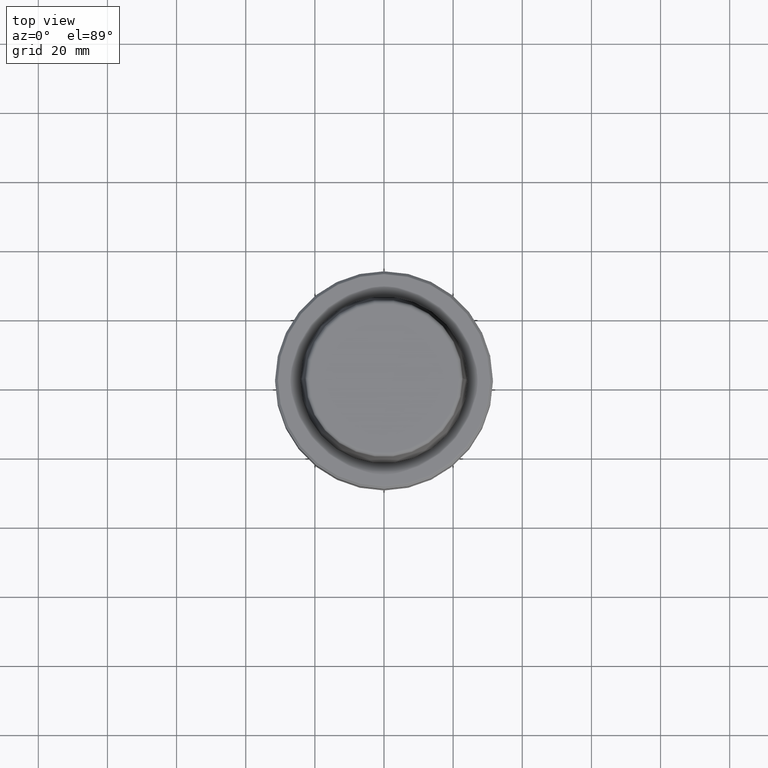
[diagram: clean part render]
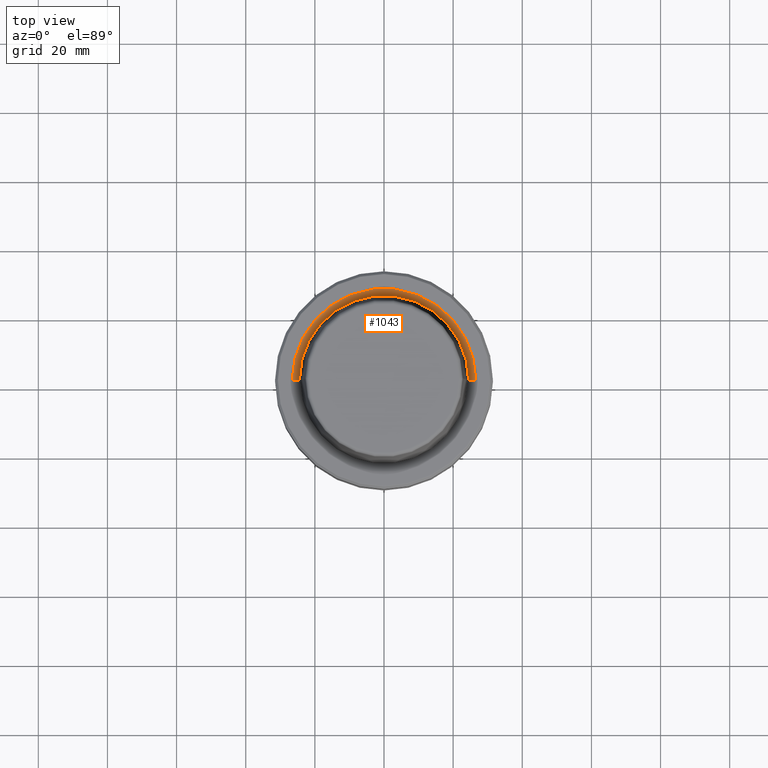
[diagram: same view with one face highlighted and labeled with its STEP entity id]
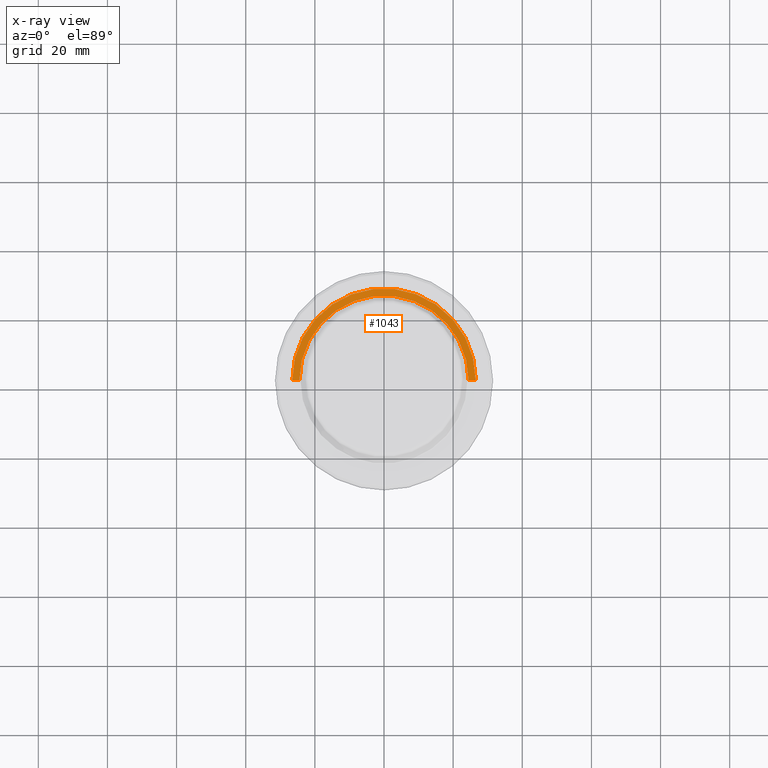
[diagram: x-ray of the same camera — body ghosted, the highlighted face saturated]
A machine part, top view. The second image highlights one B-rep face of the part: STEP entity #1043.
The next image is the same camera in x-ray: the body ghosted, the highlighted face saturated — about 0% of this face is hidden behind the body in this view.
In plain terms, the highlighted conical surface has half-angle 80 deg.
Its self-contained STEP definition (entity closure, byte-faithful):
#12 = LINE ( 'NONE', #1203, #877 ) ;
#28 = EDGE_CURVE ( 'NONE', #1111, #326, #12, .T. ) ;
#33 = DIRECTION ( 'NONE',  ( 0.9848077530122074700, 0.0000000000000000000, 0.1736481776669334700 ) ) ;
#61 = VERTEX_POINT ( 'NONE', #977 ) ;
#68 = EDGE_LOOP ( 'NONE', ( #690, #204, #517, #927 ) ) ;
#113 = EDGE_CURVE ( 'NONE', #326, #368, #862, .T. ) ;
#182 = VECTOR ( 'NONE', #909, 1000.000000000000200 ) ;
#204 = ORIENTED_EDGE ( 'NONE', *, *, #384, .F. ) ;
#221 = CARTESIAN_POINT ( 'NONE',  ( -26.52499999999999900, 3.248375634738354300E-015, 0.0000000000000000000 ) ) ;
#222 = CARTESIAN_POINT ( 'NONE',  ( 0.0000000000000000000, 0.0000000000000000000, 0.0000000000000000000 ) ) ;
#242 = DIRECTION ( 'NONE',  ( -0.0000000000000000000, -0.0000000000000000000, 1.000000000000000000 ) ) ;
#326 = VERTEX_POINT ( 'NONE', #1053 ) ;
#351 = CARTESIAN_POINT ( 'NONE',  ( 0.0000000000000000000, 0.0000000000000000000, 0.0000000000000000000 ) ) ;
#368 = VERTEX_POINT ( 'NONE', #221 ) ;
#384 = EDGE_CURVE ( 'NONE', #1111, #61, #908, .T. ) ;
#435 = EDGE_CURVE ( 'NONE', #61, #368, #665, .T. ) ;
#442 = AXIS2_PLACEMENT_3D ( 'NONE', #351, #242, #1072 ) ;
#490 = AXIS2_PLACEMENT_3D ( 'NONE', #222, #1181, #930 ) ;
#517 = ORIENTED_EDGE ( 'NONE', *, *, #28, .T. ) ;
#557 = AXIS2_PLACEMENT_3D ( 'NONE', #1134, #1212, #804 ) ;
#626 = FACE_OUTER_BOUND ( 'NONE', #68, .T. ) ;
#665 = LINE ( 'NONE', #1202, #182 ) ;
#690 = ORIENTED_EDGE ( 'NONE', *, *, #435, .F. ) ;
#804 = DIRECTION ( 'NONE',  ( 1.000000000000000000, 0.0000000000000000000, 0.0000000000000000000 ) ) ;
#853 = CARTESIAN_POINT ( 'NONE',  ( 24.47682408883346700, 0.0000000000000000000, -0.3611486743758107700 ) ) ;
#862 = CIRCLE ( 'NONE', #442, 26.52499999999999900 ) ;
#877 = VECTOR ( 'NONE', #33, 1000.000000000000200 ) ;
#908 = CIRCLE ( 'NONE', #557, 24.47682408883346700 ) ;
#909 = DIRECTION ( 'NONE',  ( -0.9848077530122074700, 1.206041662501897100E-016, 0.1736481776669334700 ) ) ;
#927 = ORIENTED_EDGE ( 'NONE', *, *, #113, .T. ) ;
#930 = DIRECTION ( 'NONE',  ( 1.000000000000000000, 0.0000000000000000000, 0.0000000000000000000 ) ) ;
#977 = CARTESIAN_POINT ( 'NONE',  ( -24.47682408883346700, 3.122961031053313900E-015, -0.3611486743758107700 ) ) ;
#1043 = ADVANCED_FACE ( 'NONE', ( #626 ), #1158, .F. ) ;
#1053 = CARTESIAN_POINT ( 'NONE',  ( 26.52499999999999900, 0.0000000000000000000, 0.0000000000000000000 ) ) ;
#1072 = DIRECTION ( 'NONE',  ( 1.000000000000000000, 0.0000000000000000000, 0.0000000000000000000 ) ) ;
#1111 = VERTEX_POINT ( 'NONE', #853 ) ;
#1134 = CARTESIAN_POINT ( 'NONE',  ( 0.0000000000000000000, 0.0000000000000000000, -0.3611486743758107700 ) ) ;
#1158 = CONICAL_SURFACE ( 'NONE', #490, 26.52499999999999900, 1.396263401595460500 ) ;
#1181 = DIRECTION ( 'NONE',  ( -0.0000000000000000000, -0.0000000000000000000, 1.000000000000000000 ) ) ;
#1202 = CARTESIAN_POINT ( 'NONE',  ( -26.52499999999999900, 3.248375634738354300E-015, 0.0000000000000000000 ) ) ;
#1203 = CARTESIAN_POINT ( 'NONE',  ( 26.52499999999999900, 0.0000000000000000000, 0.0000000000000000000 ) ) ;
#1212 = DIRECTION ( 'NONE',  ( -0.0000000000000000000, -0.0000000000000000000, 1.000000000000000000 ) ) ;